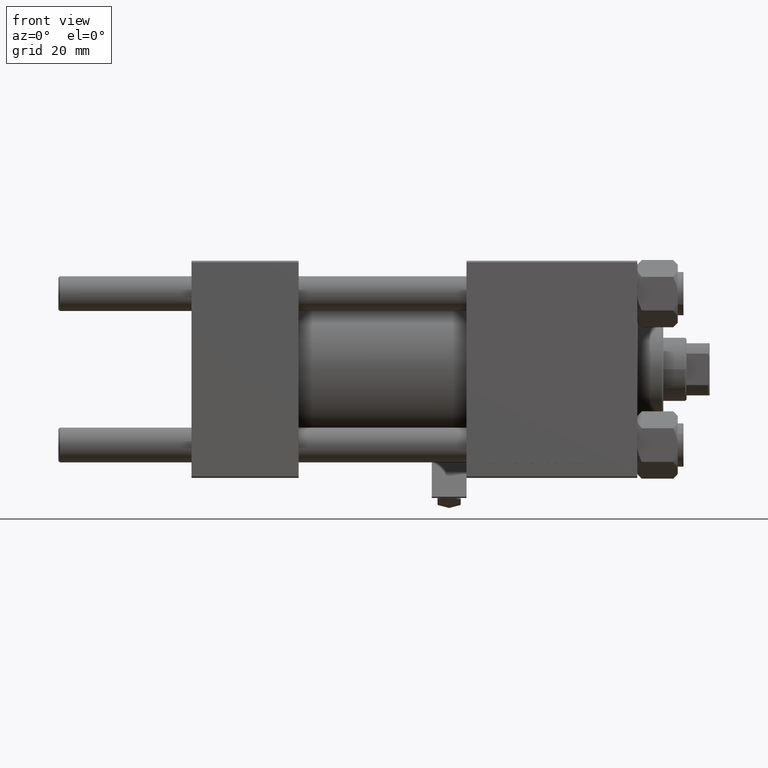
[diagram: clean part render]
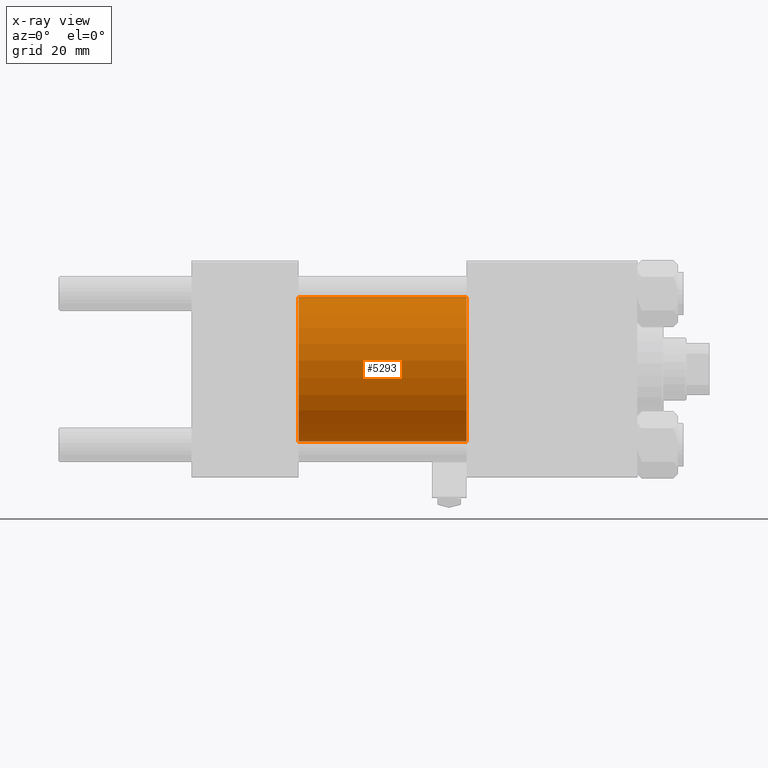
[diagram: x-ray — body ghosted, one internal face saturated and labeled with its STEP entity id]
A machine part, front view, then the same camera in x-ray: the body is ghosted and one INTERNAL B-rep face — a face not visible from any outside direction — is saturated and labeled: STEP entity #5293.
In plain terms, the highlighted cylindrical surface (partial cylindrical patch) has radius 25 mm, axis along (-1, -0, -0).
Its self-contained STEP definition (entity closure, byte-faithful):
#4158 = FACE_OUTER_BOUND ( 'NONE', #18870, .T. ) ;
#5293 = ADVANCED_FACE ( 'NONE', ( #4158 ), #34702, .F. ) ;
#6055 = DIRECTION ( 'NONE',  ( 0.000000000000000000, 0.000000000000000000, -1.000000000000000000 ) ) ;
#6312 = DIRECTION ( 'NONE',  ( 1.000000000000000000, 0.000000000000000000, 0.000000000000000000 ) ) ;
#6361 = VERTEX_POINT ( 'NONE', #16418 ) ;
#11859 = CARTESIAN_POINT ( 'NONE',  ( 95.00000000000000000, 3.061616997868382254E-15, -25.00000000000000000 ) ) ;
#13977 = CIRCLE ( 'NONE', #20523, 25.00000000000000000 ) ;
#14947 = CARTESIAN_POINT ( 'NONE',  ( 95.00000000000000000, 0.000000000000000000, 0.000000000000000000 ) ) ;
#15932 = DIRECTION ( 'NONE',  ( 1.000000000000000000, 0.000000000000000000, 0.000000000000000000 ) ) ;
#16418 = CARTESIAN_POINT ( 'NONE',  ( 95.00000000000000000, 0.000000000000000000, 25.00000000000000000 ) ) ;
#18870 = EDGE_LOOP ( 'NONE', ( #24650, #46210, #27628, #27507 ) ) ;
#20523 = AXIS2_PLACEMENT_3D ( 'NONE', #32107, #15932, #24127 ) ;
#20901 = VECTOR ( 'NONE', #42794, 1000.000000000000000 ) ;
#21019 = CIRCLE ( 'NONE', #38109, 25.00000000000000000 ) ;
#21707 = DIRECTION ( 'NONE',  ( -1.000000000000000000, -0.000000000000000000, -0.000000000000000000 ) ) ;
#23403 = DIRECTION ( 'NONE',  ( -1.000000000000000000, -0.000000000000000000, -0.000000000000000000 ) ) ;
#24127 = DIRECTION ( 'NONE',  ( 0.000000000000000000, 0.000000000000000000, -1.000000000000000000 ) ) ;
#24650 = ORIENTED_EDGE ( 'NONE', *, *, #46395, .T. ) ;
#25005 = AXIS2_PLACEMENT_3D ( 'NONE', #14947, #23403, #46254 ) ;
#26558 = CARTESIAN_POINT ( 'NONE',  ( 37.00000000000000000, 0.000000000000000000, 0.000000000000000000 ) ) ;
#27507 = ORIENTED_EDGE ( 'NONE', *, *, #28800, .F. ) ;
#27628 = ORIENTED_EDGE ( 'NONE', *, *, #32084, .F. ) ;
#27925 = CARTESIAN_POINT ( 'NONE',  ( 37.00000000000000000, 3.061616997868382254E-15, -25.00000000000000000 ) ) ;
#28800 = EDGE_CURVE ( 'NONE', #6361, #28819, #47419, .T. ) ;
#28819 = VERTEX_POINT ( 'NONE', #43050 ) ;
#28859 = EDGE_CURVE ( 'NONE', #31361, #37152, #41219, .T. ) ;
#29925 = VECTOR ( 'NONE', #21707, 1000.000000000000000 ) ;
#31361 = VERTEX_POINT ( 'NONE', #11859 ) ;
#32084 = EDGE_CURVE ( 'NONE', #28819, #37152, #21019, .T. ) ;
#32107 = CARTESIAN_POINT ( 'NONE',  ( 95.00000000000000000, 0.000000000000000000, 0.000000000000000000 ) ) ;
#34702 = CYLINDRICAL_SURFACE ( 'NONE', #25005, 25.00000000000000000 ) ;
#36883 = CARTESIAN_POINT ( 'NONE',  ( 95.00000000000000000, 3.061616997868382254E-15, -25.00000000000000000 ) ) ;
#37152 = VERTEX_POINT ( 'NONE', #27925 ) ;
#38109 = AXIS2_PLACEMENT_3D ( 'NONE', #26558, #6312, #6055 ) ;
#41219 = LINE ( 'NONE', #36883, #29925 ) ;
#42794 = DIRECTION ( 'NONE',  ( -1.000000000000000000, -0.000000000000000000, -0.000000000000000000 ) ) ;
#43050 = CARTESIAN_POINT ( 'NONE',  ( 37.00000000000000000, 0.000000000000000000, 25.00000000000000000 ) ) ;
#43311 = CARTESIAN_POINT ( 'NONE',  ( 95.00000000000000000, 0.000000000000000000, 25.00000000000000000 ) ) ;
#46210 = ORIENTED_EDGE ( 'NONE', *, *, #28859, .T. ) ;
#46254 = DIRECTION ( 'NONE',  ( 0.000000000000000000, 0.000000000000000000, 1.000000000000000000 ) ) ;
#46395 = EDGE_CURVE ( 'NONE', #6361, #31361, #13977, .T. ) ;
#47419 = LINE ( 'NONE', #43311, #20901 ) ;